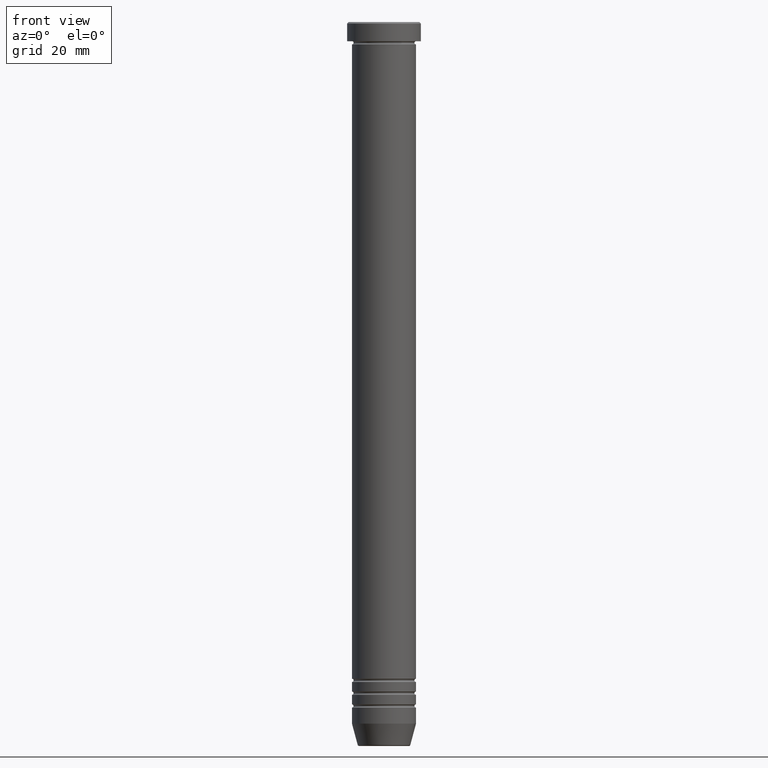
[diagram: clean part render]
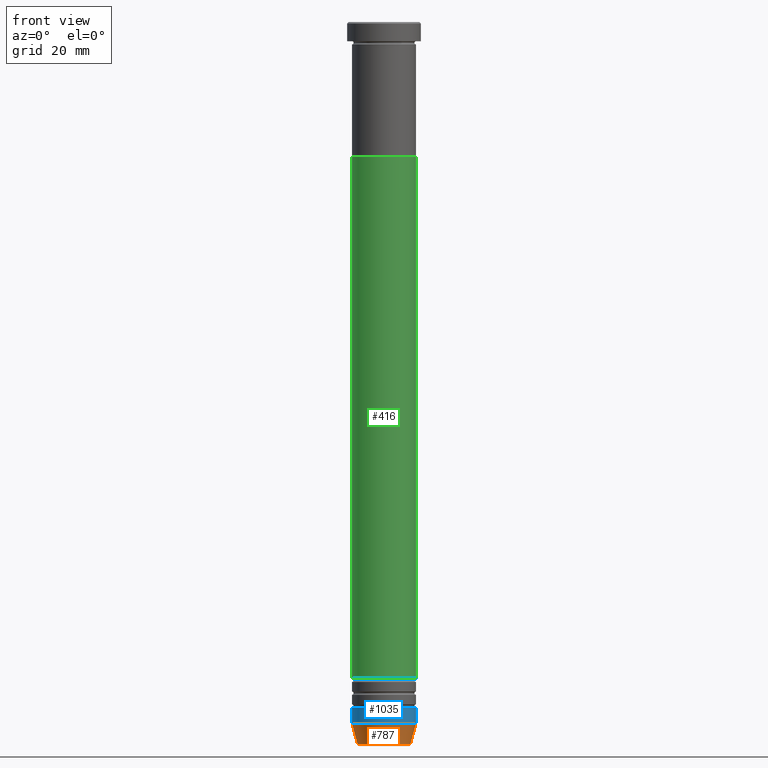
[diagram: same view with three faces highlighted in distinct colors, each labeled with its STEP entity id]
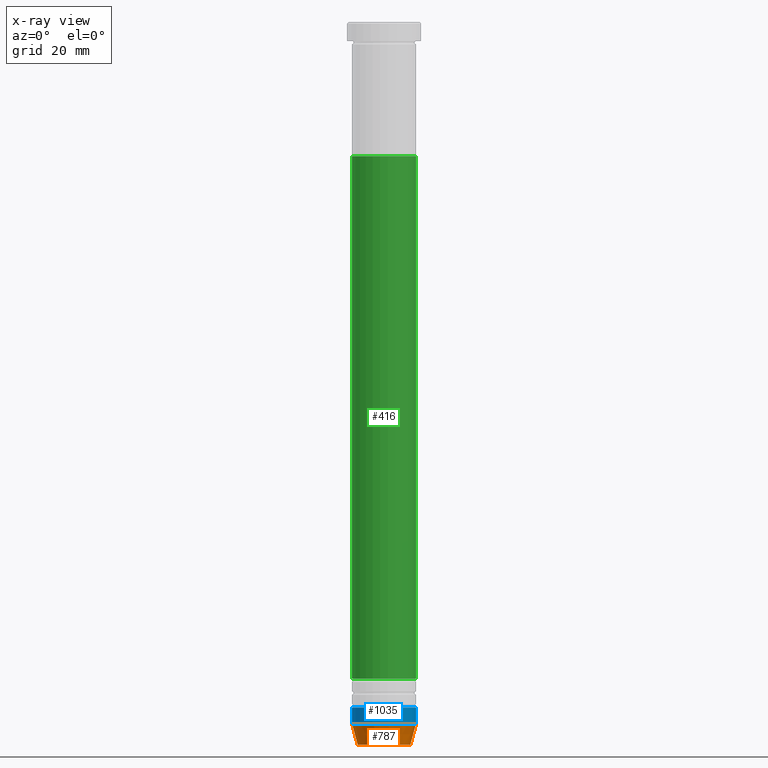
[diagram: x-ray of the same camera — body ghosted, the three highlighted faces saturated]
A machine part, front view with three faces highlighted in distinct colors.
The next image is the same camera in x-ray (body ghosted, the three faces saturated) — at least one of them is partly hidden behind the body in this view.
Their STEP definitions:

[orange] entity #787 — the highlighted conical surface has half-angle 15 deg.
#37 = ORIENTED_EDGE ( 'NONE', *, *, #858, .F. ) ;
#61 = ORIENTED_EDGE ( 'NONE', *, *, #85, .T. ) ;
#73 = DIRECTION ( 'NONE',  ( -1.000000000000000000, 0.000000000000000000, 0.000000000000000000 ) ) ;
#80 = VERTEX_POINT ( 'NONE', #961 ) ;
#83 = VERTEX_POINT ( 'NONE', #264 ) ;
#85 = EDGE_CURVE ( 'NONE', #80, #83, #883, .T. ) ;
#154 = ORIENTED_EDGE ( 'NONE', *, *, #499, .F. ) ;
#155 = FACE_OUTER_BOUND ( 'NONE', #304, .T. ) ;
#164 = CARTESIAN_POINT ( 'NONE',  ( 0.000000000000000000, 0.000000000000000000, -225.6294095225512137 ) ) ;
#188 = CONICAL_SURFACE ( 'NONE', #1117, 8.124355652982133691, 0.2617993877991502405 ) ;
#208 = AXIS2_PLACEMENT_3D ( 'NONE', #164, #1047, #73 ) ;
#264 = CARTESIAN_POINT ( 'NONE',  ( 10.00000000000000000, 0.000000000000000000, -218.9999999999999716 ) ) ;
#266 = ORIENTED_EDGE ( 'NONE', *, *, #981, .T. ) ;
#268 = VERTEX_POINT ( 'NONE', #820 ) ;
#304 = EDGE_LOOP ( 'NONE', ( #37, #266, #61, #154 ) ) ;
#434 = CARTESIAN_POINT ( 'NONE',  ( 8.124355652982133691, 0.000000000000000000, -225.9999999999999716 ) ) ;
#451 = CIRCLE ( 'NONE', #208, 8.223655072137189492 ) ;
#499 = EDGE_CURVE ( 'NONE', #268, #83, #603, .T. ) ;
#512 = CARTESIAN_POINT ( 'NONE',  ( 0.000000000000000000, 0.000000000000000000, -218.9999999999999716 ) ) ;
#534 = CARTESIAN_POINT ( 'NONE',  ( -8.223655072137189492, 1.115877042642912054E-15, -225.6294095225512137 ) ) ;
#603 = CIRCLE ( 'NONE', #671, 10.00000000000000000 ) ;
#631 = DIRECTION ( 'NONE',  ( -0.000000000000000000, -0.000000000000000000, 1.000000000000000000 ) ) ;
#668 = LINE ( 'NONE', #1022, #879 ) ;
#671 = AXIS2_PLACEMENT_3D ( 'NONE', #512, #631, #965 ) ;
#685 = CARTESIAN_POINT ( 'NONE',  ( 0.000000000000000000, 0.000000000000000000, -225.9999999999999716 ) ) ;
#787 = ADVANCED_FACE ( 'NONE', ( #155 ), #188, .T. ) ;
#820 = CARTESIAN_POINT ( 'NONE',  ( -10.00000000000000000, 1.224646799147353256E-15, -218.9999999999999716 ) ) ;
#858 = EDGE_CURVE ( 'NONE', #975, #268, #668, .T. ) ;
#864 = DIRECTION ( 'NONE',  ( -0.000000000000000000, -0.000000000000000000, 1.000000000000000000 ) ) ;
#879 = VECTOR ( 'NONE', #1030, 1000.000000000000114 ) ;
#883 = LINE ( 'NONE', #434, #1059 ) ;
#887 = DIRECTION ( 'NONE',  ( 0.2588190451025214611, 0.000000000000000000, 0.9659258262890679791 ) ) ;
#961 = CARTESIAN_POINT ( 'NONE',  ( 8.223655072137189492, 0.000000000000000000, -225.6294095225512137 ) ) ;
#965 = DIRECTION ( 'NONE',  ( 1.000000000000000000, 0.000000000000000000, 0.000000000000000000 ) ) ;
#975 = VERTEX_POINT ( 'NONE', #534 ) ;
#981 = EDGE_CURVE ( 'NONE', #975, #80, #451, .T. ) ;
#1022 = CARTESIAN_POINT ( 'NONE',  ( -8.124355652982133691, 9.949466145559274611E-16, -225.9999999999999716 ) ) ;
#1030 = DIRECTION ( 'NONE',  ( -0.2588190451025214611, 3.169619151431774186E-17, 0.9659258262890679791 ) ) ;
#1047 = DIRECTION ( 'NONE',  ( -0.000000000000000000, -0.000000000000000000, 1.000000000000000000 ) ) ;
#1059 = VECTOR ( 'NONE', #887, 1000.000000000000114 ) ;
#1109 = DIRECTION ( 'NONE',  ( 1.000000000000000000, 0.000000000000000000, 0.000000000000000000 ) ) ;
#1117 = AXIS2_PLACEMENT_3D ( 'NONE', #685, #864, #1109 ) ;

[blue] entity #1035 — the highlighted cylindrical surface (edge-blend (fillet) strip) has radius 10 mm, axis along (-0, -0, 1).
#5 = EDGE_CURVE ( 'NONE', #351, #1020, #526, .T. ) ;
#30 = DIRECTION ( 'NONE',  ( -0.000000000000000000, -0.000000000000000000, 1.000000000000000000 ) ) ;
#83 = VERTEX_POINT ( 'NONE', #264 ) ;
#94 = ORIENTED_EDGE ( 'NONE', *, *, #548, .T. ) ;
#99 = DIRECTION ( 'NONE',  ( 1.000000000000000000, 0.000000000000000000, 0.000000000000000000 ) ) ;
#111 = CYLINDRICAL_SURFACE ( 'NONE', #658, 10.00000000000000000 ) ;
#165 = CARTESIAN_POINT ( 'NONE',  ( 10.00000000000000000, 0.000000000000000000, 0.000000000000000000 ) ) ;
#193 = ORIENTED_EDGE ( 'NONE', *, *, #5, .F. ) ;
#235 = DIRECTION ( 'NONE',  ( -0.000000000000000000, -0.000000000000000000, 1.000000000000000000 ) ) ;
#254 = DIRECTION ( 'NONE',  ( -0.000000000000000000, -0.000000000000000000, 1.000000000000000000 ) ) ;
#264 = CARTESIAN_POINT ( 'NONE',  ( 10.00000000000000000, 0.000000000000000000, -218.9999999999999716 ) ) ;
#268 = VERTEX_POINT ( 'NONE', #820 ) ;
#290 = FACE_OUTER_BOUND ( 'NONE', #984, .T. ) ;
#351 = VERTEX_POINT ( 'NONE', #720 ) ;
#429 = AXIS2_PLACEMENT_3D ( 'NONE', #1111, #235, #1118 ) ;
#499 = EDGE_CURVE ( 'NONE', #268, #83, #603, .T. ) ;
#512 = CARTESIAN_POINT ( 'NONE',  ( 0.000000000000000000, 0.000000000000000000, -218.9999999999999716 ) ) ;
#526 = CIRCLE ( 'NONE', #429, 10.00000000000000000 ) ;
#548 = EDGE_CURVE ( 'NONE', #83, #1020, #610, .T. ) ;
#603 = CIRCLE ( 'NONE', #671, 10.00000000000000000 ) ;
#610 = LINE ( 'NONE', #165, #894 ) ;
#631 = DIRECTION ( 'NONE',  ( -0.000000000000000000, -0.000000000000000000, 1.000000000000000000 ) ) ;
#658 = AXIS2_PLACEMENT_3D ( 'NONE', #814, #30, #99 ) ;
#671 = AXIS2_PLACEMENT_3D ( 'NONE', #512, #631, #965 ) ;
#720 = CARTESIAN_POINT ( 'NONE',  ( -10.00000000000000000, 1.224646799147353256E-15, -213.9999999999999716 ) ) ;
#785 = VECTOR ( 'NONE', #925, 1000.000000000000000 ) ;
#798 = LINE ( 'NONE', #1074, #785 ) ;
#814 = CARTESIAN_POINT ( 'NONE',  ( 0.000000000000000000, 0.000000000000000000, 0.000000000000000000 ) ) ;
#820 = CARTESIAN_POINT ( 'NONE',  ( -10.00000000000000000, 1.224646799147353256E-15, -218.9999999999999716 ) ) ;
#888 = ORIENTED_EDGE ( 'NONE', *, *, #499, .T. ) ;
#894 = VECTOR ( 'NONE', #254, 1000.000000000000000 ) ;
#925 = DIRECTION ( 'NONE',  ( -0.000000000000000000, -0.000000000000000000, 1.000000000000000000 ) ) ;
#930 = ORIENTED_EDGE ( 'NONE', *, *, #1002, .F. ) ;
#965 = DIRECTION ( 'NONE',  ( 1.000000000000000000, 0.000000000000000000, 0.000000000000000000 ) ) ;
#984 = EDGE_LOOP ( 'NONE', ( #930, #888, #94, #193 ) ) ;
#985 = CARTESIAN_POINT ( 'NONE',  ( 10.00000000000000000, 0.000000000000000000, -213.9999999999999716 ) ) ;
#1002 = EDGE_CURVE ( 'NONE', #268, #351, #798, .T. ) ;
#1020 = VERTEX_POINT ( 'NONE', #985 ) ;
#1035 = ADVANCED_FACE ( 'NONE', ( #290 ), #111, .T. ) ;
#1074 = CARTESIAN_POINT ( 'NONE',  ( -10.00000000000000000, 1.224646799147353256E-15, 0.000000000000000000 ) ) ;
#1111 = CARTESIAN_POINT ( 'NONE',  ( 0.000000000000000000, 0.000000000000000000, -213.9999999999999716 ) ) ;
#1118 = DIRECTION ( 'NONE',  ( 1.000000000000000000, 0.000000000000000000, 0.000000000000000000 ) ) ;

[green] entity #416 — the highlighted cylindrical surface (edge-blend (fillet) strip) has radius 10 mm, axis along (-0, -0, 1).
#28 = CARTESIAN_POINT ( 'NONE',  ( 0.000000000000000000, 0.000000000000000000, -205.0000000000000000 ) ) ;
#31 = CARTESIAN_POINT ( 'NONE',  ( 9.999999999999992895, 0.000000000000000000, -205.0000000000000000 ) ) ;
#42 = AXIS2_PLACEMENT_3D ( 'NONE', #706, #267, #269 ) ;
#119 = CARTESIAN_POINT ( 'NONE',  ( -10.00000000000000178, 1.224646799147353454E-15, -41.99999999999999289 ) ) ;
#149 = DIRECTION ( 'NONE',  ( -0.000000000000000000, -0.000000000000000000, 1.000000000000000000 ) ) ;
#192 = CARTESIAN_POINT ( 'NONE',  ( 9.999999999999996447, 0.000000000000000000, 0.000000000000000000 ) ) ;
#214 = VERTEX_POINT ( 'NONE', #271 ) ;
#256 = ORIENTED_EDGE ( 'NONE', *, *, #361, .T. ) ;
#267 = DIRECTION ( 'NONE',  ( -0.000000000000000000, -0.000000000000000000, 1.000000000000000000 ) ) ;
#269 = DIRECTION ( 'NONE',  ( 1.000000000000000000, 0.000000000000000000, 0.000000000000000000 ) ) ;
#270 = EDGE_CURVE ( 'NONE', #666, #214, #629, .T. ) ;
#271 = CARTESIAN_POINT ( 'NONE',  ( 10.00000000000000000, 0.000000000000000000, -41.99999999999999289 ) ) ;
#285 = ORIENTED_EDGE ( 'NONE', *, *, #916, .F. ) ;
#309 = VERTEX_POINT ( 'NONE', #897 ) ;
#315 = FACE_OUTER_BOUND ( 'NONE', #809, .T. ) ;
#322 = CARTESIAN_POINT ( 'NONE',  ( 0.000000000000000000, 0.000000000000000000, 0.000000000000000000 ) ) ;
#354 = AXIS2_PLACEMENT_3D ( 'NONE', #28, #1019, #669 ) ;
#361 = EDGE_CURVE ( 'NONE', #309, #666, #986, .T. ) ;
#416 = ADVANCED_FACE ( 'NONE', ( #315 ), #763, .T. ) ;
#502 = EDGE_CURVE ( 'NONE', #309, #627, #682, .T. ) ;
#522 = CARTESIAN_POINT ( 'NONE',  ( -9.999999999999996447, 1.224646799147352862E-15, 0.000000000000000000 ) ) ;
#575 = DIRECTION ( 'NONE',  ( 1.000000000000000000, 0.000000000000000000, 0.000000000000000000 ) ) ;
#596 = ORIENTED_EDGE ( 'NONE', *, *, #270, .T. ) ;
#627 = VERTEX_POINT ( 'NONE', #119 ) ;
#629 = LINE ( 'NONE', #192, #837 ) ;
#666 = VERTEX_POINT ( 'NONE', #31 ) ;
#669 = DIRECTION ( 'NONE',  ( 1.000000000000000000, 0.000000000000000000, 0.000000000000000000 ) ) ;
#682 = LINE ( 'NONE', #522, #1042 ) ;
#706 = CARTESIAN_POINT ( 'NONE',  ( 0.000000000000000000, 0.000000000000000000, -41.99999999999999289 ) ) ;
#709 = AXIS2_PLACEMENT_3D ( 'NONE', #322, #1025, #575 ) ;
#763 = CYLINDRICAL_SURFACE ( 'NONE', #709, 9.999999999999996447 ) ;
#809 = EDGE_LOOP ( 'NONE', ( #924, #256, #596, #285 ) ) ;
#837 = VECTOR ( 'NONE', #918, 1000.000000000000000 ) ;
#897 = CARTESIAN_POINT ( 'NONE',  ( -9.999999999999992895, 1.224646799147352665E-15, -205.0000000000000000 ) ) ;
#916 = EDGE_CURVE ( 'NONE', #627, #214, #990, .T. ) ;
#918 = DIRECTION ( 'NONE',  ( -0.000000000000000000, -0.000000000000000000, 1.000000000000000000 ) ) ;
#924 = ORIENTED_EDGE ( 'NONE', *, *, #502, .F. ) ;
#986 = CIRCLE ( 'NONE', #354, 9.999999999999992895 ) ;
#990 = CIRCLE ( 'NONE', #42, 10.00000000000000000 ) ;
#1019 = DIRECTION ( 'NONE',  ( -0.000000000000000000, -0.000000000000000000, 1.000000000000000000 ) ) ;
#1025 = DIRECTION ( 'NONE',  ( -0.000000000000000000, -0.000000000000000000, 1.000000000000000000 ) ) ;
#1042 = VECTOR ( 'NONE', #149, 1000.000000000000000 ) ;